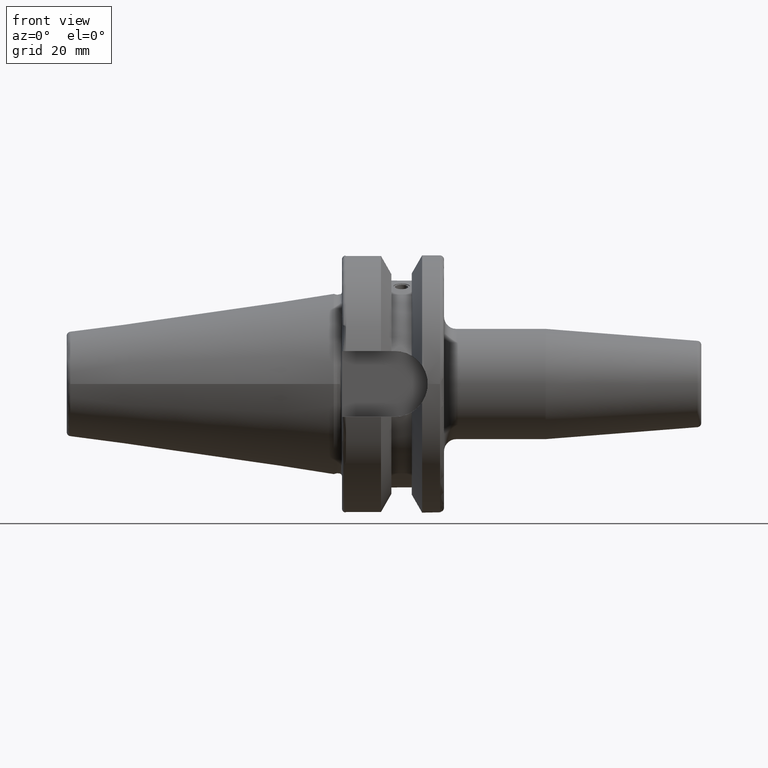
[diagram: clean part render]
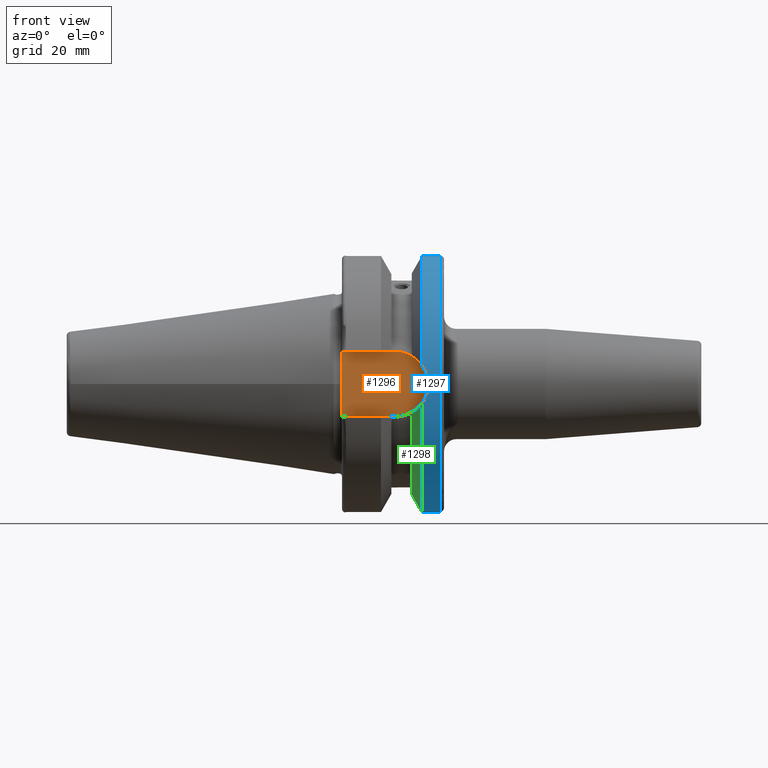
[diagram: same view with three faces highlighted in distinct colors, each labeled with its STEP entity id]
A machine part, front view with three faces highlighted in distinct colors.
Their STEP definitions:

[orange] entity #1296 — the highlighted planar face has unit normal (0, 1, 0).
#184=FACE_OUTER_BOUND('',#274,.T.);
#274=EDGE_LOOP('',(#1059,#1060,#1061,#1062));
#353=CIRCLE('',#1454,8.05);
#430=LINE('',#2365,#498);
#432=LINE('',#2370,#500);
#436=LINE('',#2392,#504);
#498=VECTOR('',#1776,10.);
#500=VECTOR('',#1780,10.);
#504=VECTOR('',#1786,10.);
#600=VERTEX_POINT('',#2336);
#601=VERTEX_POINT('',#2338);
#607=VERTEX_POINT('',#2363);
#609=VERTEX_POINT('',#2369);
#759=EDGE_CURVE('',#600,#601,#353,.T.);
#767=EDGE_CURVE('',#607,#600,#430,.T.);
#769=EDGE_CURVE('',#601,#609,#432,.T.);
#775=EDGE_CURVE('',#609,#607,#436,.T.);
#1059=ORIENTED_EDGE('',*,*,#769,.F.);
#1060=ORIENTED_EDGE('',*,*,#759,.F.);
#1061=ORIENTED_EDGE('',*,*,#767,.F.);
#1062=ORIENTED_EDGE('',*,*,#775,.F.);
#1240=PLANE('',#1457);
#1296=ADVANCED_FACE('',(#184),#1240,.F.);
#1454=AXIS2_PLACEMENT_3D('',#2339,#1767,#1768);
#1457=AXIS2_PLACEMENT_3D('',#2391,#1784,#1785);
#1767=DIRECTION('center_axis',(0.,1.,0.));
#1768=DIRECTION('ref_axis',(0.,0.,1.));
#1776=DIRECTION('',(1.,0.,8.57315076930623E-17));
#1780=DIRECTION('',(-1.,0.,-8.57315076930623E-17));
#1784=DIRECTION('center_axis',(0.,1.,0.));
#1785=DIRECTION('ref_axis',(0.,0.,1.));
#1786=DIRECTION('',(0.,0.,1.));
#2336=CARTESIAN_POINT('',(14.95,-22.6,8.05));
#2338=CARTESIAN_POINT('',(14.95,-22.6,-8.05));
#2339=CARTESIAN_POINT('Origin',(14.95,-22.6,0.));
#2363=CARTESIAN_POINT('',(1.99999999999999,-22.6,8.05));
#2365=CARTESIAN_POINT('',(1.99999999999999,-22.6,8.05));
#2369=CARTESIAN_POINT('',(1.99999999999999,-22.6,-8.05));
#2370=CARTESIAN_POINT('',(14.95,-22.6,-8.05));
#2391=CARTESIAN_POINT('Origin',(12.5,-22.6,0.));
#2392=CARTESIAN_POINT('',(1.99999999999999,-22.6,0.));

[blue] entity #1297 — the highlighted cylindrical surface (bore or boss wall) has radius 31.5 mm, axis along (1, 0, 0).
#32=B_SPLINE_CURVE_WITH_KNOTS('',3,(#2307,#2308,#2309,#2310,#2311,#2312),
 .UNSPECIFIED.,.F.,.F.,(4,2,4),(1.21877751840372,1.52344857393281,1.67526011710938),
 .UNSPECIFIED.);
#33=B_SPLINE_CURVE_WITH_KNOTS('',3,(#2314,#2315,#2316,#2317,#2318,#2319),
 .UNSPECIFIED.,.F.,.F.,(4,2,4),(0.762294919698051,0.914106462874623,1.21877751840372),
 .UNSPECIFIED.);
#38=B_SPLINE_CURVE_WITH_KNOTS('',3,(#2401,#2402,#2403,#2404,#2405,#2406,
#2407,#2408,#2409,#2410),.UNSPECIFIED.,.F.,.F.,(4,2,2,2,4),(3.19984995650548,
3.35166149968206,3.65633255521115,3.96100361074024,4.11281515391681),
 .UNSPECIFIED.);
#115=CYLINDRICAL_SURFACE('',#1458,31.5);
#185=FACE_OUTER_BOUND('',#275,.T.);
#275=EDGE_LOOP('',(#1063,#1064,#1065,#1066,#1067,#1068,#1069,#1070,#1071));
#354=CIRCLE('',#1459,31.5);
#355=CIRCLE('',#1460,31.5);
#356=CIRCLE('',#1461,31.5);
#357=CIRCLE('',#1462,31.5);
#437=LINE('',#2397,#505);
#505=VECTOR('',#1791,31.5);
#594=VERTEX_POINT('',#2299);
#595=VERTEX_POINT('',#2306);
#596=VERTEX_POINT('',#2313);
#614=VERTEX_POINT('',#2394);
#615=VERTEX_POINT('',#2395);
#616=VERTEX_POINT('',#2398);
#617=VERTEX_POINT('',#2400);
#753=EDGE_CURVE('',#595,#594,#32,.T.);
#754=EDGE_CURVE('',#596,#595,#33,.T.);
#776=EDGE_CURVE('',#614,#615,#354,.T.);
#777=EDGE_CURVE('',#614,#595,#437,.T.);
#778=EDGE_CURVE('',#594,#616,#355,.T.);
#779=EDGE_CURVE('',#616,#617,#38,.T.);
#780=EDGE_CURVE('',#617,#596,#356,.T.);
#781=EDGE_CURVE('',#615,#614,#357,.T.);
#1063=ORIENTED_EDGE('',*,*,#776,.F.);
#1064=ORIENTED_EDGE('',*,*,#777,.T.);
#1065=ORIENTED_EDGE('',*,*,#753,.T.);
#1066=ORIENTED_EDGE('',*,*,#778,.T.);
#1067=ORIENTED_EDGE('',*,*,#779,.T.);
#1068=ORIENTED_EDGE('',*,*,#780,.T.);
#1069=ORIENTED_EDGE('',*,*,#754,.T.);
#1070=ORIENTED_EDGE('',*,*,#777,.F.);
#1071=ORIENTED_EDGE('',*,*,#781,.F.);
#1297=ADVANCED_FACE('',(#185),#115,.T.);
#1458=AXIS2_PLACEMENT_3D('',#2393,#1787,#1788);
#1459=AXIS2_PLACEMENT_3D('',#2396,#1789,#1790);
#1460=AXIS2_PLACEMENT_3D('',#2399,#1792,#1793);
#1461=AXIS2_PLACEMENT_3D('',#2411,#1794,#1795);
#1462=AXIS2_PLACEMENT_3D('',#2412,#1796,#1797);
#1787=DIRECTION('center_axis',(1.,0.,0.));
#1788=DIRECTION('ref_axis',(0.,1.,0.));
#1789=DIRECTION('center_axis',(1.,0.,0.));
#1790=DIRECTION('ref_axis',(0.,0.,-1.));
#1791=DIRECTION('',(-1.,0.,0.));
#1792=DIRECTION('center_axis',(1.,0.,0.));
#1793=DIRECTION('ref_axis',(0.,0.,-1.));
#1794=DIRECTION('center_axis',(1.,0.,0.));
#1795=DIRECTION('ref_axis',(0.,0.,-1.));
#1796=DIRECTION('center_axis',(1.,0.,0.));
#1797=DIRECTION('ref_axis',(0.,0.,-1.));
#2299=CARTESIAN_POINT('',(21.6309636926618,-31.1782420264945,-4.4907932637046));
#2306=CARTESIAN_POINT('',(23.,-31.5,-1.51248507442265E-15));
#2307=CARTESIAN_POINT('Ctrl Pts',(23.,-31.5,8.32667268468867E-16));
#2308=CARTESIAN_POINT('Ctrl Pts',(23.,-31.5,-1.01557018509698));
#2309=CARTESIAN_POINT('Ctrl Pts',(22.7961189876535,-31.445974204441,-2.09580170425552));
#2310=CARTESIAN_POINT('Ctrl Pts',(22.1796133812044,-31.2997625705024,-3.58065358198869));
#2311=CARTESIAN_POINT('Ctrl Pts',(21.92482980253,-31.2412125047166,-4.05360796141051));
#2312=CARTESIAN_POINT('Ctrl Pts',(21.6309636926618,-31.1782420264945,-4.4907932637046));
#2313=CARTESIAN_POINT('',(21.6309636926618,-31.1782420264945,4.4907932637046));
#2314=CARTESIAN_POINT('Ctrl Pts',(21.6309636926618,-31.1782420264945,4.4907932637046));
#2315=CARTESIAN_POINT('Ctrl Pts',(21.92482980253,-31.2412125047166,4.05360796141051));
#2316=CARTESIAN_POINT('Ctrl Pts',(22.1796133812044,-31.2997625705024,3.58065358198869));
#2317=CARTESIAN_POINT('Ctrl Pts',(22.7961189876535,-31.445974204441,2.09580170425552));
#2318=CARTESIAN_POINT('Ctrl Pts',(23.,-31.5,1.01557018509698));
#2319=CARTESIAN_POINT('Ctrl Pts',(23.,-31.5,-2.77555756156289E-16));
#2393=CARTESIAN_POINT('Origin',(23.8154818463309,0.,0.));
#2394=CARTESIAN_POINT('',(26.,-31.5,-3.85763741731416E-15));
#2395=CARTESIAN_POINT('',(26.,-3.85763741731416E-15,31.5));
#2396=CARTESIAN_POINT('Origin',(26.,0.,0.));
#2397=CARTESIAN_POINT('',(23.8154818463309,-31.5,-3.85763741731416E-15));
#2398=CARTESIAN_POINT('',(21.6309636926618,31.1782420264945,-4.4907932637046));
#2399=CARTESIAN_POINT('Origin',(21.6309636926618,0.,0.));
#2400=CARTESIAN_POINT('',(21.6309636926618,31.1782420264945,4.4907932637046));
#2401=CARTESIAN_POINT('Ctrl Pts',(21.6309636926618,31.1782420264945,-4.4907932637046));
#2402=CARTESIAN_POINT('Ctrl Pts',(21.92482980253,31.2412125047166,-4.05360796141051));
#2403=CARTESIAN_POINT('Ctrl Pts',(22.1796133812044,31.2997625705024,-3.58065358198869));
#2404=CARTESIAN_POINT('Ctrl Pts',(22.7961189876535,31.445974204441,-2.09580170425552));
#2405=CARTESIAN_POINT('Ctrl Pts',(23.,31.5,-1.01557018509698));
#2406=CARTESIAN_POINT('Ctrl Pts',(23.,31.5,1.01557018509698));
#2407=CARTESIAN_POINT('Ctrl Pts',(22.7961189876535,31.445974204441,2.09580170425552));
#2408=CARTESIAN_POINT('Ctrl Pts',(22.1796133812044,31.2997625705024,3.58065358198869));
#2409=CARTESIAN_POINT('Ctrl Pts',(21.92482980253,31.2412125047166,4.05360796141051));
#2410=CARTESIAN_POINT('Ctrl Pts',(21.6309636926618,31.1782420264945,4.4907932637046));
#2411=CARTESIAN_POINT('Origin',(21.6309636926618,0.,0.));
#2412=CARTESIAN_POINT('Origin',(26.,0.,0.));

[green] entity #1298 — the highlighted conical surface has half-angle 60.125 deg.
#31=B_SPLINE_CURVE_WITH_KNOTS('',3,(#2300,#2301,#2302,#2303,#2304,#2305),
 .UNSPECIFIED.,.F.,.F.,(4,2,4),(3.12975744792547,3.62699288756974,3.70848737461386),
 .UNSPECIFIED.);
#39=B_SPLINE_CURVE_WITH_KNOTS('',3,(#2416,#2417,#2418,#2419,#2420,#2421),
 .UNSPECIFIED.,.F.,.F.,(4,2,4),(1.4642102789956,1.54570476603972,2.04294020568399),
 .UNSPECIFIED.);
#132=CONICAL_SURFACE('',#1463,29.2970358274569,1.0493792127616);
#186=FACE_OUTER_BOUND('',#276,.T.);
#276=EDGE_LOOP('',(#1072,#1073,#1074,#1075));
#355=CIRCLE('',#1460,31.5);
#358=CIRCLE('',#1464,27.0940716549138);
#593=VERTEX_POINT('',#2297);
#594=VERTEX_POINT('',#2299);
#616=VERTEX_POINT('',#2398);
#618=VERTEX_POINT('',#2414);
#752=EDGE_CURVE('',#594,#593,#31,.T.);
#778=EDGE_CURVE('',#594,#616,#355,.T.);
#782=EDGE_CURVE('',#593,#618,#358,.T.);
#783=EDGE_CURVE('',#618,#616,#39,.T.);
#1072=ORIENTED_EDGE('',*,*,#752,.T.);
#1073=ORIENTED_EDGE('',*,*,#782,.T.);
#1074=ORIENTED_EDGE('',*,*,#783,.T.);
#1075=ORIENTED_EDGE('',*,*,#778,.F.);
#1298=ADVANCED_FACE('',(#186),#132,.T.);
#1460=AXIS2_PLACEMENT_3D('',#2399,#1792,#1793);
#1463=AXIS2_PLACEMENT_3D('',#2413,#1798,#1799);
#1464=AXIS2_PLACEMENT_3D('',#2415,#1800,#1801);
#1792=DIRECTION('center_axis',(1.,0.,0.));
#1793=DIRECTION('ref_axis',(0.,0.,-1.));
#1798=DIRECTION('center_axis',(1.,0.,0.));
#1799=DIRECTION('ref_axis',(0.,1.,0.));
#1800=DIRECTION('center_axis',(1.,0.,0.));
#1801=DIRECTION('ref_axis',(0.,0.,-1.));
#2297=CARTESIAN_POINT('',(19.1,-26.201311395455,-6.89782574439221));
#2299=CARTESIAN_POINT('',(21.6309636926618,-31.1782420264945,-4.4907932637046));
#2300=CARTESIAN_POINT('Ctrl Pts',(21.6309636926618,-31.1782420264945,-4.4907932637046));
#2301=CARTESIAN_POINT('Ctrl Pts',(20.9728756148303,-29.8797957262939,-5.46983244373115));
#2302=CARTESIAN_POINT('Ctrl Pts',(20.1784155384866,-28.3157123387484,-6.18231368976925));
#2303=CARTESIAN_POINT('Ctrl Pts',(19.3406963650697,-26.6728819297428,-6.74867108656039));
#2304=CARTESIAN_POINT('Ctrl Pts',(19.2210929544554,-26.4384736933511,-6.82497151762395));
#2305=CARTESIAN_POINT('Ctrl Pts',(19.1,-26.201311395455,-6.89782574439221));
#2398=CARTESIAN_POINT('',(21.6309636926618,31.1782420264945,-4.4907932637046));
#2399=CARTESIAN_POINT('Origin',(21.6309636926618,0.,0.));
#2413=CARTESIAN_POINT('Origin',(20.3654818463309,0.,0.));
#2414=CARTESIAN_POINT('',(19.1,26.201311395455,-6.89782574439221));
#2415=CARTESIAN_POINT('Origin',(19.1,0.,0.));
#2416=CARTESIAN_POINT('Ctrl Pts',(19.1,26.201311395455,-6.89782574439221));
#2417=CARTESIAN_POINT('Ctrl Pts',(19.2210929544554,26.438473693351,-6.82497151762395));
#2418=CARTESIAN_POINT('Ctrl Pts',(19.3406963650697,26.6728819297428,-6.74867108656039));
#2419=CARTESIAN_POINT('Ctrl Pts',(20.1784155384866,28.3157123387484,-6.18231368976925));
#2420=CARTESIAN_POINT('Ctrl Pts',(20.9728756148303,29.8797957262939,-5.46983244373115));
#2421=CARTESIAN_POINT('Ctrl Pts',(21.6309636926618,31.1782420264945,-4.4907932637046));